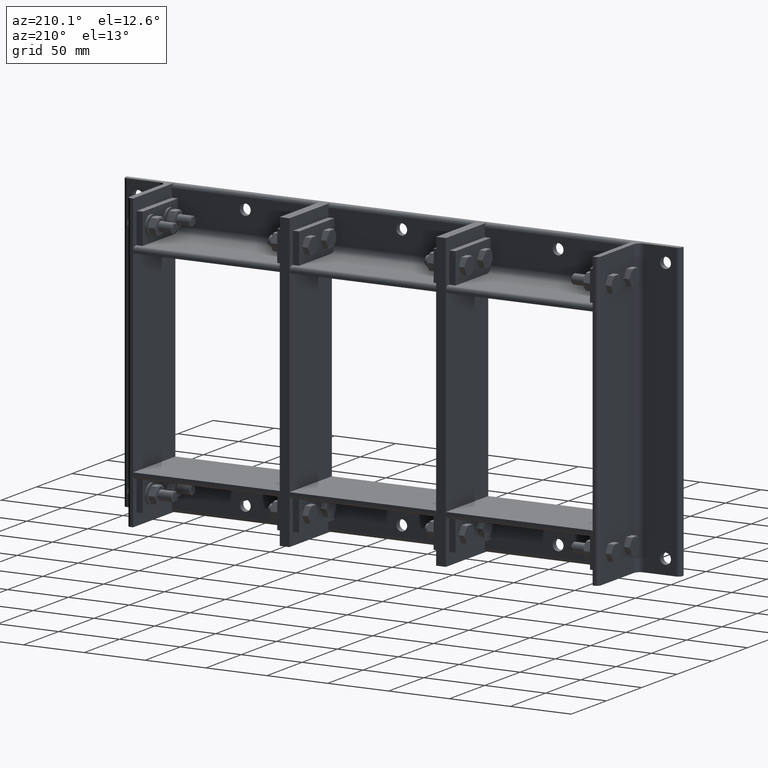
[diagram: clean part render]
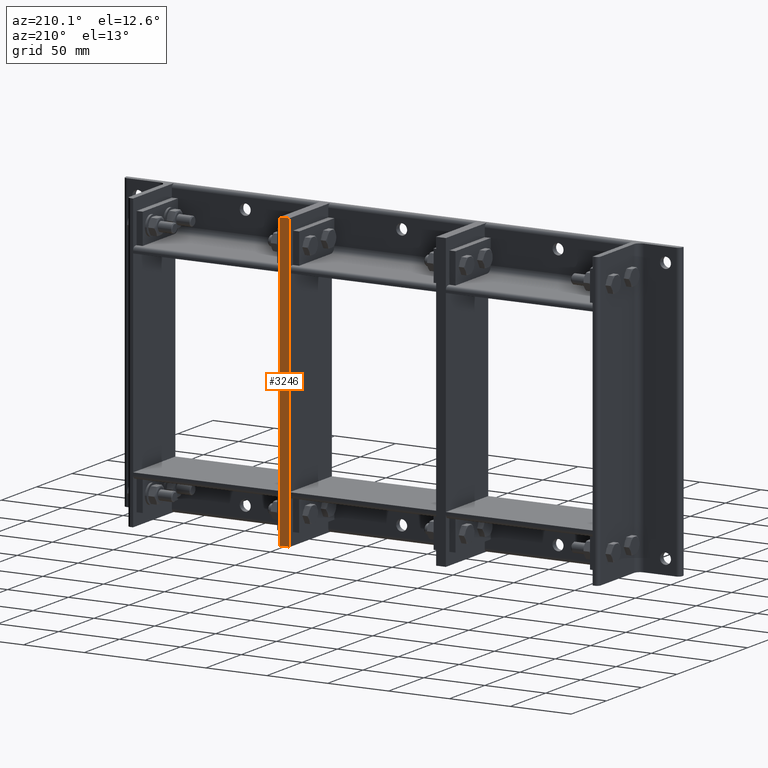
[diagram: same view with one face highlighted and labeled with its STEP entity id]
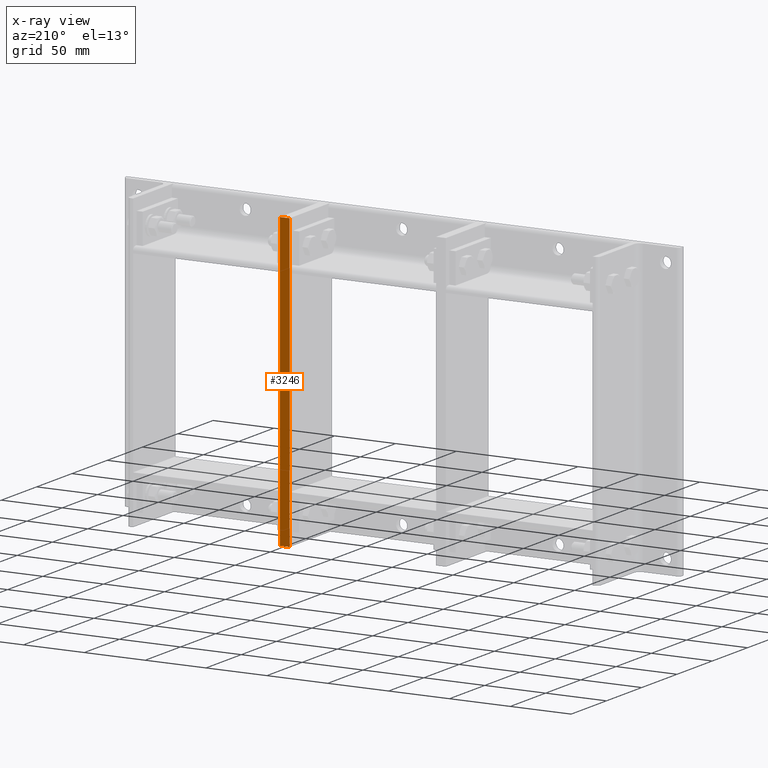
[diagram: x-ray of the same camera — body ghosted, the highlighted face saturated]
A machine part, auxiliary view. The second image highlights one B-rep face of the part: STEP entity #3246.
The next image is the same camera in x-ray: the body ghosted, the highlighted face saturated — about 0% of this face is hidden behind the body in this view.
In plain terms, the highlighted planar face has unit normal (-0, 1, 0).
Its self-contained STEP definition (entity closure, byte-faithful):
#3171=CARTESIAN_POINT('',(-1.776357E-014,60.0,239.50000000000003));
#3172=VERTEX_POINT('',#3171);
#3179=CARTESIAN_POINT('',(-1.776357E-014,60.0,0.0));
#3180=VERTEX_POINT('',#3179);
#3181=CARTESIAN_POINT('',(-1.776357E-014,60.0,0.0));
#3182=DIRECTION('',(0.0,0.0,1.0));
#3183=VECTOR('',#3182,239.50000000000003);
#3184=LINE('',#3181,#3183);
#3185=EDGE_CURVE('',#3180,#3172,#3184,.T.);
#3216=CARTESIAN_POINT('',(-1.776357E-014,60.0,0.0));
#3217=DIRECTION('',(0.0,1.0,0.0));
#3218=DIRECTION('',(0.0,0.0,1.0));
#3219=AXIS2_PLACEMENT_3D('',#3216,#3217,#3218);
#3220=PLANE('',#3219);
#3221=CARTESIAN_POINT('',(7.999999999999981,60.0,239.50000000000003));
#3222=VERTEX_POINT('',#3221);
#3223=CARTESIAN_POINT('',(-1.776357E-014,60.0,239.50000000000003));
#3224=DIRECTION('',(1.0,0.0,0.0));
#3225=VECTOR('',#3224,7.999999999999998);
#3226=LINE('',#3223,#3225);
#3227=EDGE_CURVE('',#3172,#3222,#3226,.T.);
#3228=ORIENTED_EDGE('',*,*,#3227,.T.);
#3229=CARTESIAN_POINT('',(7.999999999999981,60.0,0.0));
#3230=VERTEX_POINT('',#3229);
#3231=CARTESIAN_POINT('',(7.999999999999981,60.0,0.0));
#3232=DIRECTION('',(0.0,0.0,1.0));
#3233=VECTOR('',#3232,239.50000000000003);
#3234=LINE('',#3231,#3233);
#3235=EDGE_CURVE('',#3230,#3222,#3234,.T.);
#3236=ORIENTED_EDGE('',*,*,#3235,.F.);
#3237=CARTESIAN_POINT('',(7.999999999999981,60.0,0.0));
#3238=DIRECTION('',(-1.0,0.0,0.0));
#3239=VECTOR('',#3238,7.999999999999998);
#3240=LINE('',#3237,#3239);
#3241=EDGE_CURVE('',#3230,#3180,#3240,.T.);
#3242=ORIENTED_EDGE('',*,*,#3241,.T.);
#3243=ORIENTED_EDGE('',*,*,#3185,.T.);
#3244=EDGE_LOOP('',(#3228,#3236,#3242,#3243));
#3245=FACE_OUTER_BOUND('',#3244,.T.);
#3246=ADVANCED_FACE('',(#3245),#3220,.T.);